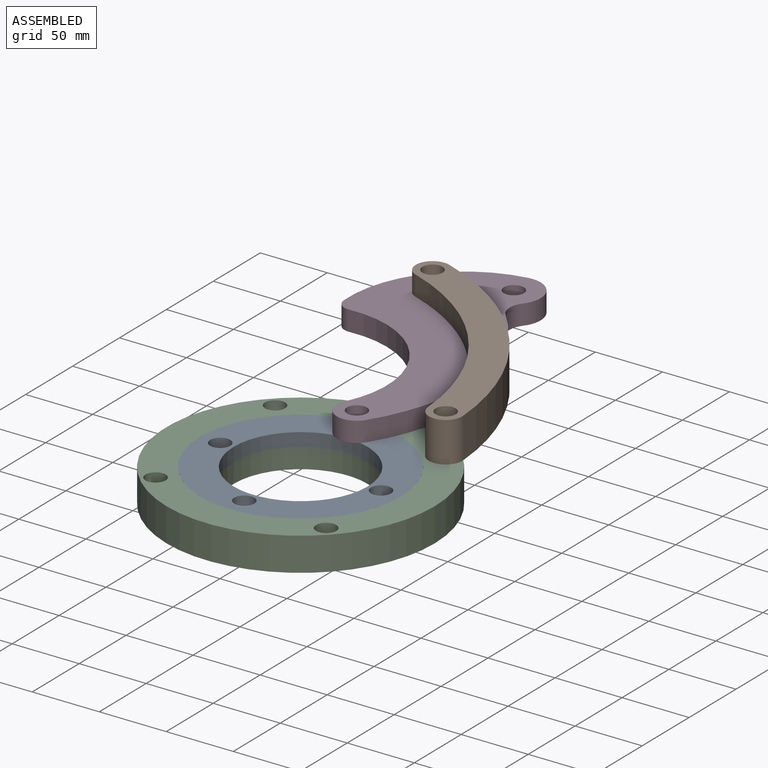
[diagram: assembled view]
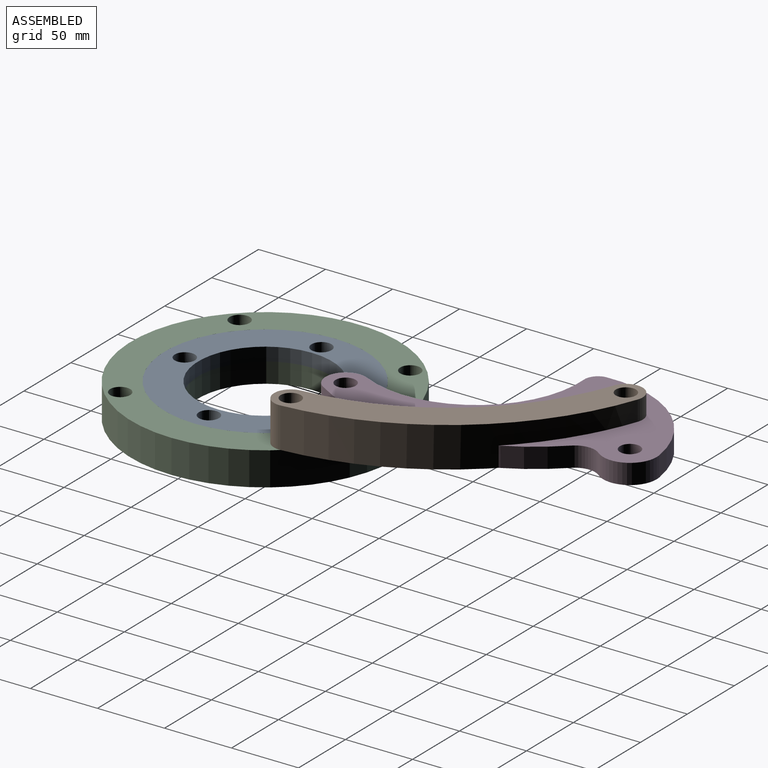
[diagram: assembled view, second angle]
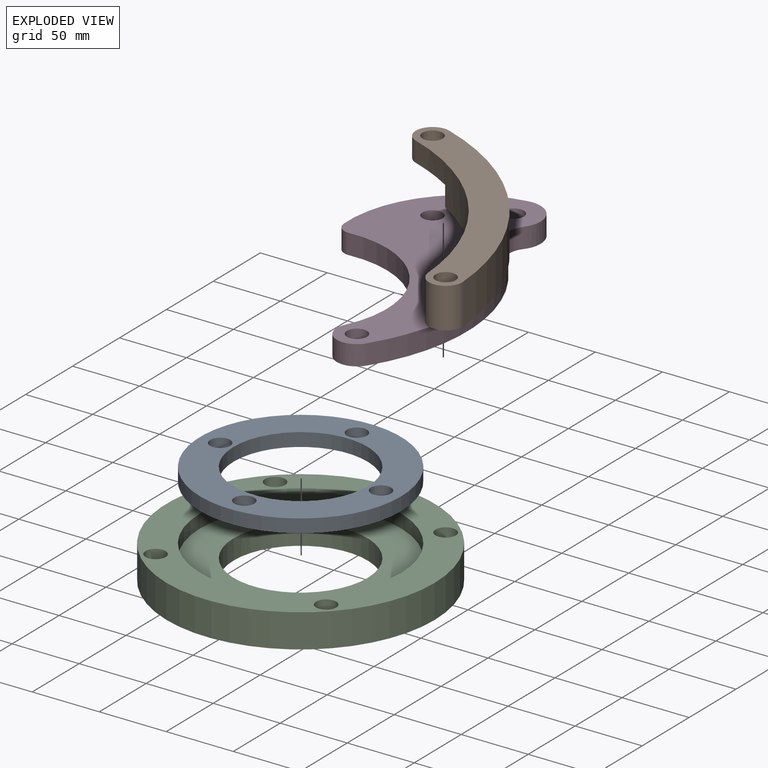
[diagram: exploded view]
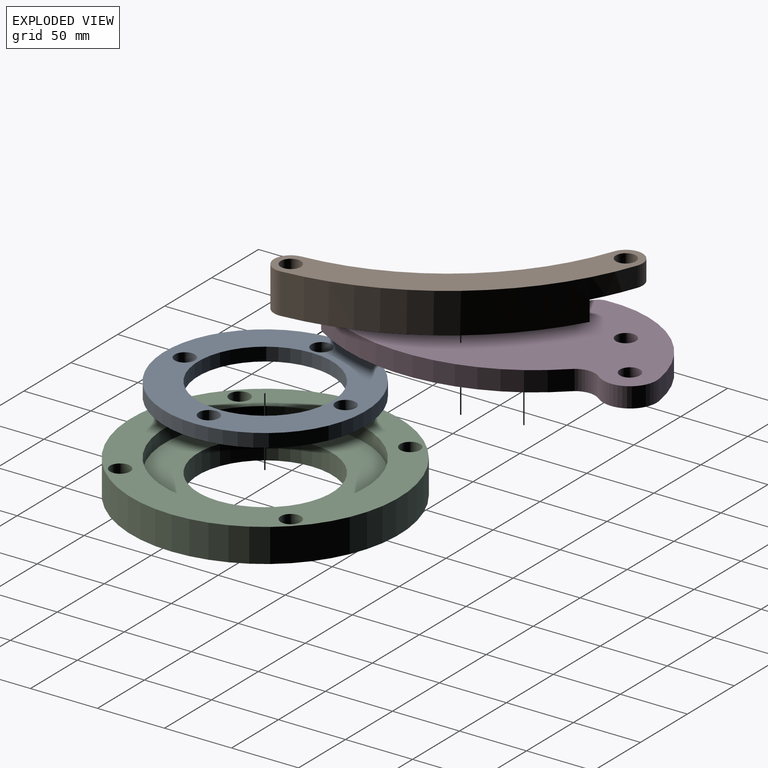
[diagram: exploded view, second angle]
ASSEMBLY  parts=4 mates=4
PART A: 8 faces, bbox 150x150x10 mm
  f0: plane 150x150mm, normal (0,0,1), area 9110.6mm2, adj f1,f2,f4,f5,f6,f7
  f1: cylinder r=75mm len=150mm, axis (0,0,-1), area 4712.4mm2, adj f0,f3
  f2: cylinder r=50mm len=100mm, axis (0,0,-1), area 3141.6mm2, adj f0,f3
  f3: plane 150x150mm, normal (0,0,-1), area 9110.6mm2, adj f1,f2,f4,f5,f6,f7
  f4: cylinder r=7.5mm len=15mm, axis (0,0,1), area 471.2mm2, adj f0,f3
  f5: cylinder r=7.5mm len=15mm, axis (0,0,1), area 471.2mm2, adj f0,f3
  f6: cylinder r=7.5mm len=15mm, axis (0,0,1), area 471.2mm2, adj f0,f3
  f7: cylinder r=7.5mm len=15mm, axis (0,0,1), area 471.2mm2, adj f0,f3
PART B: 10 faces, bbox 95.1x219.8x30 mm
  f0: cylinder r=175mm len=181.83mm, axis (0,0,-1), area 5524.7mm2, adj f1,f2,f4,f7,f8,f9
  f1: plane 193.53x64.56mm, normal (0,0,-1), area 4607.6mm2, adj f0,f2,f3,f6,f8
  f2: cylinder r=12.5mm len=30mm, axis (0,0,-1), area 1178.1mm2, adj f0,f1,f3,f7
  f3: cylinder r=200mm len=207.8mm, axis (0,0,-1), area 6426.7mm2, adj f1,f2,f4,f7,f8,f9
  f4: cylinder r=12.5mm len=22.24mm, axis (0,0,-1), area 589mm2, adj f0,f3,f7,f9
  f5: cylinder r=7.5mm len=15mm, axis (0,0,-1), area 706.9mm2, adj f7,f9
  f6: cylinder r=7.5mm len=30mm, axis (0,0,-1), area 1413.7mm2, adj f1,f7
  f7: plane 219.82x95.06mm, normal (0,0,1), area 5558.1mm2, adj f0,f2,f3,f4,f5,f6
  f8: plane 21.56x15mm, normal (-0.83,0.56,0), area 389.6mm2, adj f0,f1,f3,f9
  f9: plane 47.85x44.98mm, normal (0,0,-1), area 950.5mm2, adj f0,f3,f4,f5,f8
PART C: 14 faces, bbox 200x200x25 mm
  f0: cylinder r=50mm len=100mm, axis (0,0,1), area 4712.4mm2, adj f3,f4
  f1: cylinder r=100mm len=200mm, axis (0,0,-1), area 15708mm2, adj f2,f3
  f2: plane 200x200mm, normal (0,0,1), area 13037.6mm2, adj f1,f5,f7,f9,f11,f13
  f3: plane 200x200mm, normal (0,0,-1), area 23561.9mm2, adj f0,f1
  f4: plane 150x150mm, normal (0,0,1), area 9817.5mm2, adj f0,f5
  f5: cylinder r=75mm len=150mm, axis (0,0,1), area 4712.4mm2, adj f2,f4
  f6: plane 15x15mm, normal (0,0,1), area 176.7mm2, adj f7
  f7: cylinder r=7.5mm len=15mm, axis (0,0,1), area 471.2mm2, adj f2,f6
  f8: plane 15x15mm, normal (0,0,1), area 176.7mm2, adj f9
  f9: cylinder r=7.5mm len=15mm, axis (0,0,1), area 471.2mm2, adj f2,f8
  f10: plane 15x15mm, normal (0,0,1), area 176.7mm2, adj f11
  f11: cylinder r=7.5mm len=15mm, axis (0,0,1), area 471.2mm2, adj f2,f10
  f12: plane 15x15mm, normal (0,0,1), area 176.7mm2, adj f13
  f13: cylinder r=7.5mm len=15mm, axis (0,0,1), area 471.2mm2, adj f2,f12
PART D: 12 faces, bbox 126.6x233.5x15 mm
  f0: plane 233.46x126.63mm, normal (0,0,1), area 14057.1mm2, adj f1,f2,f3,f4,f5,f6,f7,f8
  f1: cylinder r=76.63mm len=117.33mm, axis (0,0,-1), area 2402.6mm2, adj f0,f2,f7,f11
  f2: cylinder r=15mm len=26.69mm, axis (0,0,-1), area 680.6mm2, adj f0,f1,f3,f11
  f3: cylinder r=140mm len=173.93mm, axis (0,0,-1), area 2815.1mm2, adj f0,f2,f4,f11
  f4: cylinder r=15mm len=19.82mm, axis (0,0,-1), area 325.4mm2, adj f0,f3,f5,f11
  f5: cylinder r=20mm len=34.11mm, axis (0,0,-1), area 718.3mm2, adj f0,f4,f6,f11
  f6: cylinder r=86.78mm len=83.19mm, axis (0,0,-1), area 1931.7mm2, adj f0,f5,f7,f11
  f7: cylinder r=10mm len=15mm, axis (0,0,-1), area 236.4mm2, adj f0,f1,f6,f11
  f8: cylinder r=7.5mm len=15mm, axis (0,0,-1), area 706.9mm2, adj f0,f11
  f9: cylinder r=7.5mm len=15mm, axis (0,0,-1), area 706.9mm2, adj f0,f11
  f10: cylinder r=7.5mm len=15mm, axis (0,0,-1), area 706.9mm2, adj f0,f11
  f11: plane 233.46x126.63mm, normal (0,0,-1), area 14057.1mm2, adj f1,f2,f3,f4,f5,f6,f7,f8
PLACE A t=(-50.23,-85.08,22.21)mm
PLACE B rot(axis=(0,0,1),19.1deg) t=(-25.83,-102.43,22.21)mm
PLACE C t=(-50.23,-85.08,22.21)mm fixed
PLACE D rot(axis=(0,0,1),6.1deg) t=(-43.84,-84.74,22.21)mm
MATE revolute C.f7 <-> B.f2  axis (0,0,1) through (13.41,-21.44,47.21)mm
MATE revolute A.f6 <-> D.f2  axis (0,0,1) through (-50.23,-25.08,47.21)mm
MATE fastened A.f1 <-> C.f0  axis (0,0,-1) through (-50.23,-85.08,37.21)mm
MATE revolute B.f4 <-> D.f9  axis (0,0,-1) through (-110.61,141.72,62.21)mm
